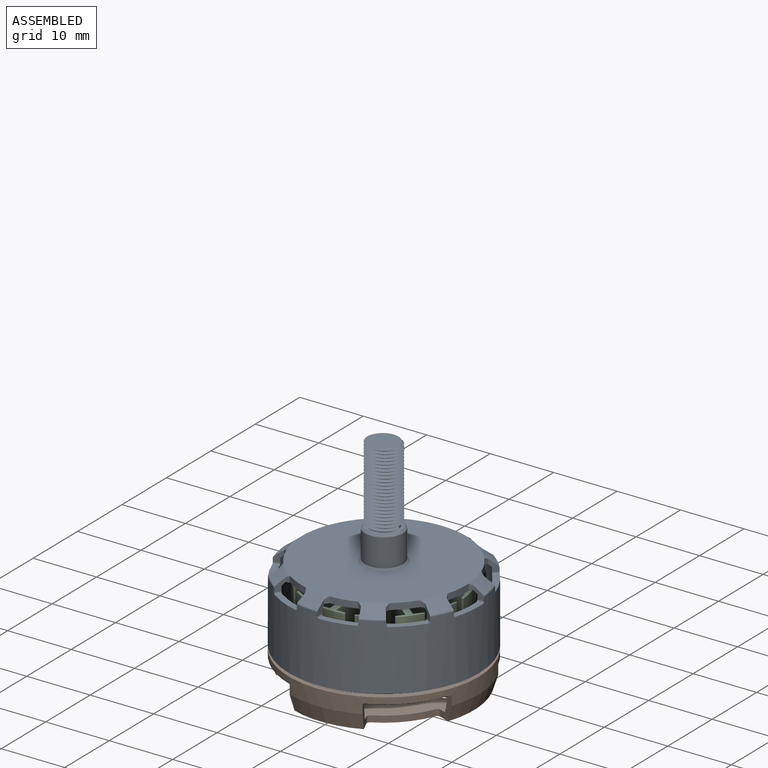
[diagram: assembled view]
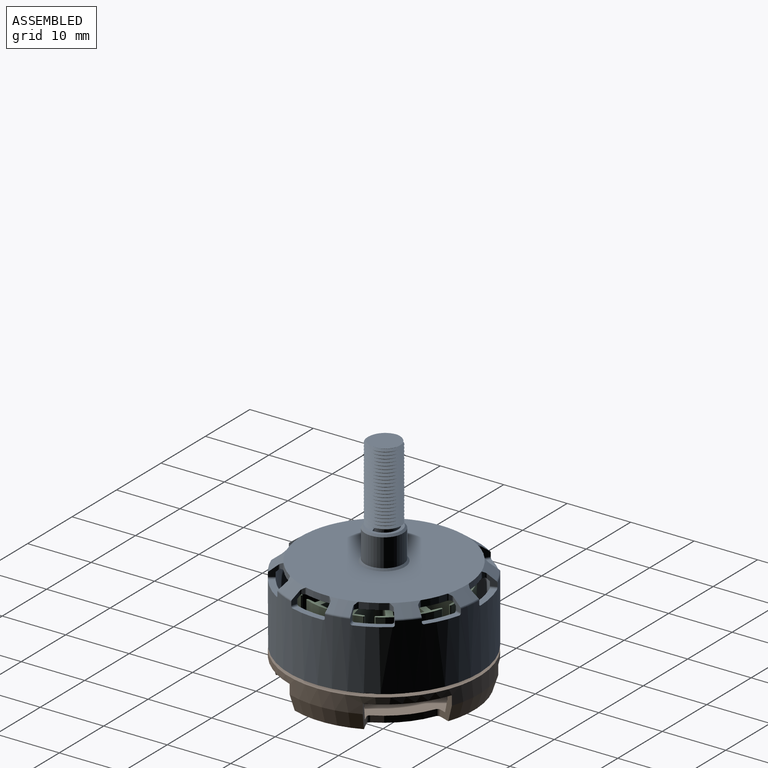
[diagram: assembled view, second angle]
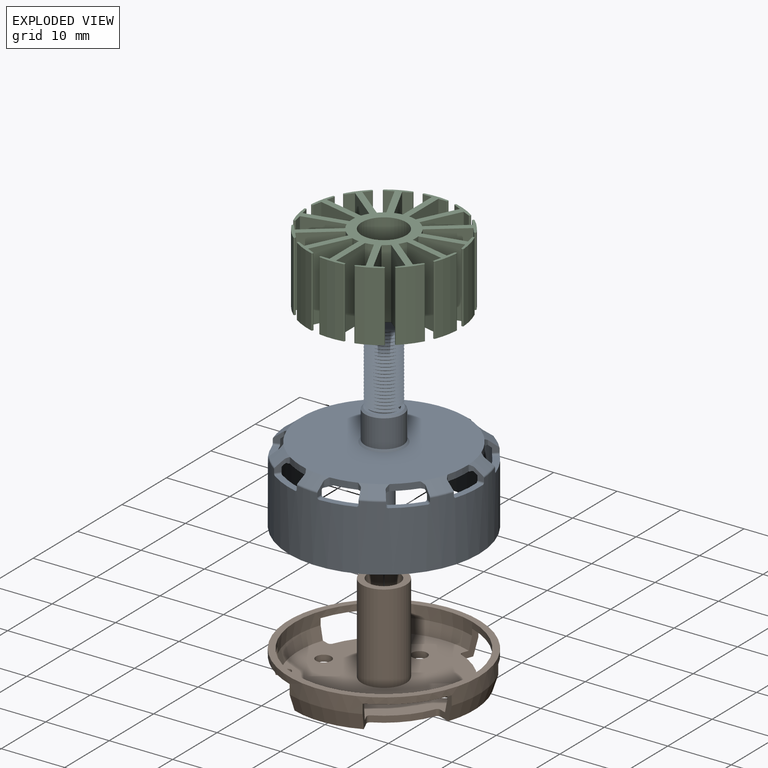
[diagram: exploded view]
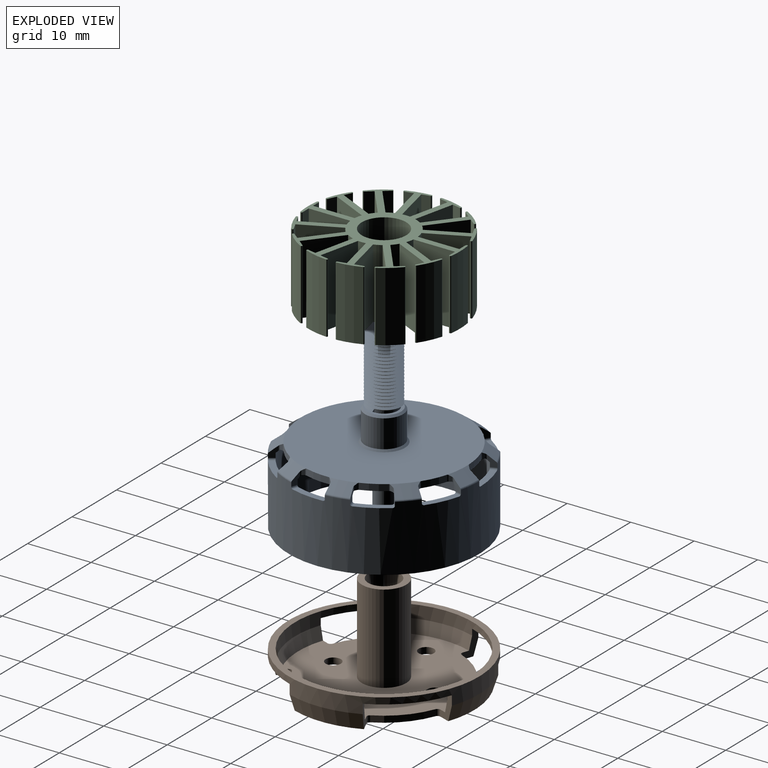
[diagram: exploded view, second angle]
ASSEMBLY  parts=3 mates=2
PART A: 166 faces, bbox 30.5x30.6x35.2 mm
  f0: bspline ~12.08x6.06mm, area 172.5mm2, adj f1,f2,f59,f60
  f1: bspline ~12.25x6.06mm, area 176.6mm2, adj f0,f2,f59,f60
  f2: cylinder r=2.2mm len=12mm, axis (0,0,-1), area -13.2mm2, adj f0,f1,f58,f59,f60
  f3: cylinder r=13mm len=3.79mm, axis (0,0,1), area 3.9mm2, adj f23,f56,f122,f123
  f4: cylinder r=13mm len=2.83mm, axis (0,0,1), area 3.9mm2, adj f23,f56,f129,f130
  f5: cylinder r=13mm len=3.83mm, axis (0,0,1), area 3.9mm2, adj f23,f56,f117,f118
  f6: cylinder r=13mm len=3.37mm, axis (0,0,1), area 3.9mm2, adj f23,f56,f113,f114
  f7: cylinder r=13mm len=3.5mm, axis (0,0,1), area 3.9mm2, adj f23,f56,f108,f109
  f8: cylinder r=13mm len=3.79mm, axis (0,0,1), area 3.9mm2, adj f23,f56,f105,f106
  f9: cylinder r=13mm len=2.83mm, axis (0,0,1), area 3.9mm2, adj f23,f56,f101,f102
  f10: cylinder r=13mm len=3.83mm, axis (0,0,1), area 3.9mm2, adj f23,f56,f96,f97
  f11: cylinder r=13mm len=3.37mm, axis (0,0,1), area 3.9mm2, adj f23,f56,f93,f94
  f12: cylinder r=13mm len=3.5mm, axis (0,0,1), area 3.9mm2, adj f23,f56,f125,f126
  f13: cone r=13mm half-angle=53.1deg, axis (0,0,-1), area 8.1mm2, adj f23,f26,f54,f73,f75,f120,f123,f124
  f14: cone r=13mm half-angle=53.1deg, axis (0,0,-1), area 8.1mm2, adj f23,f51,f53,f72,f89,f92,f93,f125
  f15: cone r=13mm half-angle=53.1deg, axis (0,0,-1), area 8.1mm2, adj f23,f48,f50,f88,f90,f91,f94,f95
  f16: cone r=13mm half-angle=53.1deg, axis (0,0,-1), area 8.1mm2, adj f23,f45,f47,f85,f87,f96,f98,f100
  f17: cone r=13mm half-angle=53.1deg, axis (0,0,-1), area 8.1mm2, adj f23,f42,f44,f83,f86,f99,f102,f104
  f18: cone r=13mm half-angle=53.1deg, axis (0,0,-1), area 8.1mm2, adj f23,f39,f41,f82,f84,f103,f106,f107
  f19: cone r=13mm half-angle=53.1deg, axis (0,0,-1), area 8.1mm2, adj f23,f36,f38,f79,f81,f108,f110,f112
  f20: cone r=13mm half-angle=53.1deg, axis (0,0,-1), area 8.1mm2, adj f23,f33,f35,f77,f80,f111,f114,f116
  f21: cone r=13mm half-angle=53.1deg, axis (0,0,-1), area 8.1mm2, adj f23,f30,f32,f71,f78,f115,f118,f128
  f22: cylinder r=15mm len=30mm, axis (0,0,-1), area 926.6mm2, adj f25,f26,f27,f28,f29,f30,f31,f32
  f23: plane 26x26mm, normal (0,0,1), area 496.7mm2, adj f3,f4,f5,f6,f7,f8,f9,f10
  f24: cone r=13mm half-angle=53.1deg, axis (0,0,-1), area 8.1mm2, adj f23,f27,f29,f74,f76,f119,f121,f122
  f25: plane 5.13x1.94mm, normal (0,0,1), area 5.1mm2, adj f22,f55,f158,f159
  f26: plane 1.74x1.39mm, normal (1,0,0), area 1.4mm2, adj f13,f22,f55,f70,f120,f159,f160
  f27: plane 1.74x1.28mm, normal (-0.92,-0.38,0), area 1.4mm2, adj f22,f24,f55,f68,f121,f155,f158
  f28: plane 4.36x4.14mm, normal (0,0,1), area 5.1mm2, adj f22,f55,f156,f157
  f29: plane 1.74x1.12mm, normal (0.81,0.59,0), area 1.4mm2, adj f22,f24,f55,f68,f119,f155,f157
  f30: plane 1.74x1.18mm, normal (-0.52,-0.85,0), area 1.4mm2, adj f21,f22,f55,f67,f128,f152,f156
  f31: plane 5.19x1.6mm, normal (0,0,1), area 5.1mm2, adj f22,f55,f153,f154
  f32: plane 1.74x1.32mm, normal (0.31,0.95,0), area 1.4mm2, adj f21,f22,f55,f67,f115,f152,f154
  f33: plane 1.74x1.38mm, normal (0.08,-1,0), area 1.4mm2, adj f20,f22,f55,f61,f116,f149,f153
  f34: plane 4.87x3.31mm, normal (0,0,1), area 5.1mm2, adj f22,f55,f150,f151
  f35: plane 1.74x1.32mm, normal (-0.31,0.95,0), area 1.4mm2, adj f20,f22,f55,f61,f111,f149,f151
  f36: plane 1.74x1.06mm, normal (0.65,-0.76,0), area 1.4mm2, adj f19,f22,f55,f62,f112,f146,f150
  f37: plane 4.98x3mm, normal (0,0,1), area 5.1mm2, adj f22,f55,f147,f148
  f38: plane 1.74x1.12mm, normal (-0.81,0.59,0), area 1.4mm2, adj f19,f22,f55,f62,f110,f146,f148
  f39: plane 1.74x1.35mm, normal (0.97,-0.24,0), area 1.4mm2, adj f18,f22,f55,f63,f107,f143,f147
  f40: plane 5.13x1.94mm, normal (0,0,1), area 5.1mm2, adj f22,f55,f144,f145
  f41: plane 1.74x1.39mm, normal (-1,0,0), area 1.4mm2, adj f18,f22,f55,f63,f103,f143,f145
  f42: plane 1.74x1.28mm, normal (0.92,0.38,0), area 1.4mm2, adj f17,f22,f55,f64,f104,f140,f144
  f43: plane 4.36x4.14mm, normal (0,0,1), area 5.1mm2, adj f22,f55,f141,f142
  f44: plane 1.74x1.12mm, normal (-0.81,-0.59,0), area 1.4mm2, adj f17,f22,f55,f64,f99,f140,f142
  f45: plane 1.74x1.18mm, normal (0.52,0.85,0), area 1.4mm2, adj f16,f22,f55,f65,f100,f137,f141
  f46: plane 5.19x1.6mm, normal (0,0,1), area 5.1mm2, adj f22,f55,f138,f139
  f47: plane 1.74x1.32mm, normal (-0.31,-0.95,0), area 1.4mm2, adj f16,f22,f55,f65,f98,f137,f139
  f48: plane 1.74x1.38mm, normal (-0.08,1,0), area 1.4mm2, adj f15,f22,f55,f66,f95,f134,f138
  f49: plane 4.87x3.31mm, normal (0,0,1), area 5.1mm2, adj f22,f55,f135,f136
  f50: plane 1.74x1.32mm, normal (0.31,-0.95,0), area 1.4mm2, adj f15,f22,f55,f66,f91,f134,f136
  f51: plane 1.74x1.06mm, normal (-0.65,0.76,0), area 1.4mm2, adj f14,f22,f55,f69,f92,f131,f135
  f52: plane 4.98x3mm, normal (0,0,1), area 5.1mm2, adj f22,f55,f132,f133
  f53: plane 1.74x1.12mm, normal (0.81,-0.59,0), area 1.4mm2, adj f14,f22,f55,f69,f127,f131,f133
  f54: plane 1.74x1.35mm, normal (-0.97,0.24,0), area 1.4mm2, adj f13,f22,f55,f70,f124,f132,f160
  f55: cylinder r=14mm len=28mm, axis (0,0,-1), area 869.9mm2, adj f25,f26,f27,f28,f29,f30,f31,f32
  f56: plane 26.8x26.74mm, normal (0,0,-1), area 538.7mm2, adj f3,f4,f5,f6,f7,f8,f9,f10
  f57: cylinder r=3mm len=6mm, axis (0,0,-1), area 82.9mm2, adj f161,f162
  f58: plane 5.4x5.4mm, normal (0,0,1), area 7.7mm2, adj f2,f162
  f59: plane 5.17x5.17mm, normal (0,0,1), area 18.3mm2, adj f0,f1,f2
  f60: plane 0.49x0.42mm, normal (0,1,0), area 0.1mm2, adj f0,f1,f2
  f61: cone r=13.4mm half-angle=50.2deg, axis (0,0,-1), area 2.6mm2, adj f33,f35,f55,f56,f77,f80,f111,f116
  f62: cone r=13.4mm half-angle=50.2deg, axis (0,0,-1), area 2.6mm2, adj f36,f38,f55,f56,f79,f81,f110,f112
  f63: cone r=13.4mm half-angle=50.2deg, axis (0,0,-1), area 2.6mm2, adj f39,f41,f55,f56,f82,f84,f103,f107
  f64: cone r=13.4mm half-angle=50.2deg, axis (0,0,-1), area 2.6mm2, adj f42,f44,f55,f56,f83,f86,f99,f104
  f65: cone r=13.4mm half-angle=50.2deg, axis (0,0,-1), area 2.6mm2, adj f45,f47,f55,f56,f85,f87,f98,f100
  f66: cone r=13.4mm half-angle=50.2deg, axis (0,0,-1), area 2.6mm2, adj f48,f50,f55,f56,f88,f90,f91,f95
  f67: cone r=13.4mm half-angle=50.2deg, axis (0,0,-1), area 2.6mm2, adj f30,f32,f55,f56,f71,f78,f115,f128
  f68: cone r=13.4mm half-angle=50.2deg, axis (0,0,-1), area 2.6mm2, adj f27,f29,f55,f56,f74,f76,f119,f121
  f69: cone r=13.4mm half-angle=50.2deg, axis (0,0,-1), area 2.6mm2, adj f51,f53,f55,f56,f72,f89,f92,f127
  f70: cone r=13.4mm half-angle=50.2deg, axis (0,0,-1), area 2.6mm2, adj f26,f54,f55,f56,f73,f75,f120,f124
  f71: plane 0.95x0.45mm, normal (0.21,-0.98,0), area 0.4mm2, adj f21,f56,f67,f128,f129
  f72: plane 0.95x0.45mm, normal (0.17,-0.98,0), area 0.4mm2, adj f14,f56,f69,f125,f127
  f73: plane 0.95x0.4mm, normal (-0.86,-0.5,0), area 0.4mm2, adj f13,f56,f70,f124,f126
  f74: plane 0.95x0.42mm, normal (-0.4,-0.92,0), area 0.4mm2, adj f24,f56,f68,f121,f122
  f75: plane 0.95x0.33mm, normal (0.72,-0.69,0), area 0.4mm2, adj f13,f56,f70,f120,f123
  f76: plane 0.95x0.45mm, normal (0.99,-0.14,0), area 0.4mm2, adj f24,f56,f68,f119,f130
  f77: plane 0.95x0.34mm, normal (0.75,-0.67,0), area 0.4mm2, adj f20,f56,f61,f116,f117
  f78: plane 0.95x0.4mm, normal (0.88,0.47,0), area 0.4mm2, adj f21,f56,f67,f115,f118
  f79: plane 0.95x0.46mm, normal (1,-0.1,0), area 0.4mm2, adj f19,f56,f62,f112,f113
  f80: plane 0.95x0.41mm, normal (0.44,0.9,0), area 0.4mm2, adj f20,f56,f61,f111,f114
  f81: plane 0.95x0.45mm, normal (-0.17,0.98,0), area 0.4mm2, adj f19,f56,f62,f108,f110
  f82: plane 0.95x0.4mm, normal (0.86,0.5,0), area 0.4mm2, adj f18,f56,f63,f107,f109
  f83: plane 0.95x0.42mm, normal (0.4,0.92,0), area 0.4mm2, adj f17,f56,f64,f104,f105
  f84: plane 0.95x0.33mm, normal (-0.72,0.69,0), area 0.4mm2, adj f18,f56,f63,f103,f106
  f85: plane 0.95x0.45mm, normal (-0.21,0.98,0), area 0.4mm2, adj f16,f56,f65,f100,f101
  f86: plane 0.95x0.45mm, normal (-0.99,0.14,0), area 0.4mm2, adj f17,f56,f64,f99,f102
  f87: plane 0.95x0.4mm, normal (-0.88,-0.47,0), area 0.4mm2, adj f16,f56,f65,f96,f98
  f88: plane 0.95x0.34mm, normal (-0.75,0.67,0), area 0.4mm2, adj f15,f56,f66,f95,f97
  f89: plane 0.95x0.46mm, normal (-1,0.1,0), area 0.4mm2, adj f14,f56,f69,f92,f93
  f90: plane 0.95x0.41mm, normal (-0.44,-0.9,0), area 0.4mm2, adj f15,f56,f66,f91,f94
  f91: cylinder r=0.3mm len=0.87mm, axis (0,0,-1), area 0.2mm2, adj f15,f50,f66,f90
  f92: cylinder r=0.3mm len=0.87mm, axis (0,0,-1), area 0.2mm2, adj f14,f51,f69,f89
  f93: cylinder r=0.3mm len=1mm, axis (0,0,1), area 0.2mm2, adj f11,f14,f56,f89
  f94: cylinder r=0.3mm len=1mm, axis (0,0,1), area 0.2mm2, adj f11,f15,f56,f90
  f95: cylinder r=0.3mm len=0.87mm, axis (0,0,-1), area 0.2mm2, adj f15,f48,f66,f88
  f96: cylinder r=0.3mm len=1mm, axis (0,0,1), area 0.2mm2, adj f10,f16,f56,f87
  f97: cylinder r=0.3mm len=1mm, axis (0,0,1), area 0.2mm2, adj f10,f15,f56,f88
  f98: cylinder r=0.3mm len=0.87mm, axis (0,0,-1), area 0.2mm2, adj f16,f47,f65,f87
  f99: cylinder r=0.3mm len=0.87mm, axis (0,0,-1), area 0.2mm2, adj f17,f44,f64,f86
  f100: cylinder r=0.3mm len=0.87mm, axis (0,0,-1), area 0.2mm2, adj f16,f45,f65,f85
  f101: cylinder r=0.3mm len=1mm, axis (0,0,1), area 0.2mm2, adj f9,f16,f56,f85
  f102: cylinder r=0.3mm len=1mm, axis (0,0,1), area 0.2mm2, adj f9,f17,f56,f86
  f103: cylinder r=0.3mm len=0.87mm, axis (0,0,-1), area 0.2mm2, adj f18,f41,f63,f84
  f104: cylinder r=0.3mm len=0.87mm, axis (0,0,-1), area 0.2mm2, adj f17,f42,f64,f83
  f105: cylinder r=0.3mm len=1mm, axis (0,0,1), area 0.2mm2, adj f8,f17,f56,f83
  f106: cylinder r=0.3mm len=1mm, axis (0,0,1), area 0.2mm2, adj f8,f18,f56,f84
  f107: cylinder r=0.3mm len=0.87mm, axis (0,0,-1), area 0.2mm2, adj f18,f39,f63,f82
  f108: cylinder r=0.3mm len=1mm, axis (0,0,1), area 0.2mm2, adj f7,f19,f56,f81
  f109: cylinder r=0.3mm len=1mm, axis (0,0,1), area 0.2mm2, adj f7,f18,f56,f82
  f110: cylinder r=0.3mm len=0.87mm, axis (0,0,-1), area 0.2mm2, adj f19,f38,f62,f81
  f111: cylinder r=0.3mm len=0.87mm, axis (0,0,-1), area 0.2mm2, adj f20,f35,f61,f80
  f112: cylinder r=0.3mm len=0.87mm, axis (0,0,-1), area 0.2mm2, adj f19,f36,f62,f79
  f113: cylinder r=0.3mm len=1mm, axis (0,0,1), area 0.2mm2, adj f6,f19,f56,f79
  f114: cylinder r=0.3mm len=1mm, axis (0,0,1), area 0.2mm2, adj f6,f20,f56,f80
  f115: cylinder r=0.3mm len=0.87mm, axis (0,0,-1), area 0.2mm2, adj f21,f32,f67,f78
  f116: cylinder r=0.3mm len=0.87mm, axis (0,0,-1), area 0.2mm2, adj f20,f33,f61,f77
  f117: cylinder r=0.3mm len=1mm, axis (0,0,1), area 0.2mm2, adj f5,f20,f56,f77
  f118: cylinder r=0.3mm len=1mm, axis (0,0,1), area 0.2mm2, adj f5,f21,f56,f78
  f119: cylinder r=0.3mm len=0.87mm, axis (0,0,-1), area 0.2mm2, adj f24,f29,f68,f76
  f120: cylinder r=0.3mm len=0.87mm, axis (0,0,-1), area 0.2mm2, adj f13,f26,f70,f75
  f121: cylinder r=0.3mm len=0.87mm, axis (0,0,-1), area 0.2mm2, adj f24,f27,f68,f74
  f122: cylinder r=0.3mm len=1mm, axis (0,0,1), area 0.2mm2, adj f3,f24,f56,f74
  f123: cylinder r=0.3mm len=1mm, axis (0,0,1), area 0.2mm2, adj f3,f13,f56,f75
  f124: cylinder r=0.3mm len=0.87mm, axis (0,0,-1), area 0.2mm2, adj f13,f54,f70,f73
  f125: cylinder r=0.3mm len=1mm, axis (0,0,1), area 0.2mm2, adj f12,f14,f56,f72
  f126: cylinder r=0.3mm len=1mm, axis (0,0,1), area 0.2mm2, adj f12,f13,f56,f73
  f127: cylinder r=0.3mm len=0.87mm, axis (0,0,-1), area 0.2mm2, adj f14,f53,f69,f72
  f128: cylinder r=0.3mm len=0.87mm, axis (0,0,-1), area 0.2mm2, adj f21,f30,f67,f71
  f129: cylinder r=0.3mm len=1mm, axis (0,0,1), area 0.2mm2, adj f4,f21,f56,f71
  f130: cylinder r=0.3mm len=1mm, axis (0,0,1), area 0.2mm2, adj f4,f24,f56,f76
  f131: torus R=14.7mm, axis (0,0,1), area 1mm2, adj f14,f22,f51,f53
  f132: cylinder r=0.3mm len=1.05mm, axis (0.24,0.97,0), area 0.5mm2, adj f22,f52,f54,f55
  f133: cylinder r=0.3mm len=0.99mm, axis (-0.59,-0.81,0), area 0.5mm2, adj f22,f52,f53,f55
  f134: torus R=14.7mm, axis (0,0,1), area 1mm2, adj f15,f22,f48,f50
  f135: cylinder r=0.3mm len=0.96mm, axis (0.76,0.65,0), area 0.5mm2, adj f22,f49,f51,f55
  f136: cylinder r=0.3mm len=1.05mm, axis (-0.95,-0.31,0), area 0.5mm2, adj f22,f49,f50,f55
  f137: torus R=14.7mm, axis (0,0,1), area 1mm2, adj f16,f22,f45,f47
  f138: cylinder r=0.3mm len=1.02mm, axis (1,0.08,0), area 0.5mm2, adj f22,f46,f48,f55
  f139: cylinder r=0.3mm len=1.05mm, axis (-0.95,0.31,0), area 0.5mm2, adj f22,f46,f47,f55
  f140: torus R=14.7mm, axis (0,0,1), area 1mm2, adj f17,f22,f42,f44
  f141: cylinder r=0.3mm len=1.01mm, axis (0.85,-0.52,0), area 0.5mm2, adj f22,f43,f45,f55
  f142: cylinder r=0.3mm len=0.99mm, axis (-0.59,0.81,0), area 0.5mm2, adj f22,f43,f44,f55
  f143: torus R=14.7mm, axis (0,0,1), area 1mm2, adj f18,f22,f39,f41
  f144: cylinder r=0.3mm len=1.04mm, axis (0.38,-0.92,0), area 0.5mm2, adj f22,f40,f42,f55
  f145: cylinder r=0.3mm len=1mm, axis (0,1,0), area 0.5mm2, adj f22,f40,f41,f55
  f146: torus R=14.7mm, axis (0,0,1), area 1mm2, adj f19,f22,f36,f38
  f147: cylinder r=0.3mm len=1.05mm, axis (-0.24,-0.97,0), area 0.5mm2, adj f22,f37,f39,f55
  f148: cylinder r=0.3mm len=0.99mm, axis (0.59,0.81,0), area 0.5mm2, adj f22,f37,f38,f55
  f149: torus R=14.7mm, axis (0,0,1), area 1mm2, adj f20,f22,f33,f35
  f150: cylinder r=0.3mm len=0.96mm, axis (-0.76,-0.65,0), area 0.5mm2, adj f22,f34,f36,f55
  f151: cylinder r=0.3mm len=1.05mm, axis (0.95,0.31,0), area 0.5mm2, adj f22,f34,f35,f55
  f152: torus R=14.7mm, axis (0,0,1), area 1mm2, adj f21,f22,f30,f32
  f153: cylinder r=0.3mm len=1.02mm, axis (-1,-0.08,0), area 0.5mm2, adj f22,f31,f33,f55
  f154: cylinder r=0.3mm len=1.05mm, axis (0.95,-0.31,0), area 0.5mm2, adj f22,f31,f32,f55
  f155: torus R=14.7mm, axis (0,0,1), area 1mm2, adj f22,f24,f27,f29
  f156: cylinder r=0.3mm len=1.01mm, axis (-0.85,0.52,0), area 0.5mm2, adj f22,f28,f30,f55
  f157: cylinder r=0.3mm len=0.99mm, axis (0.59,-0.81,0), area 0.5mm2, adj f22,f28,f29,f55
  f158: cylinder r=0.3mm len=1.04mm, axis (-0.38,0.92,0), area 0.5mm2, adj f22,f25,f27,f55
  f159: cylinder r=0.3mm len=1mm, axis (0,-1,0), area 0.5mm2, adj f22,f25,f26,f55
  f160: torus R=14.7mm, axis (0,0,1), area 1mm2, adj f13,f22,f26,f54
  f161: cone r=3mm half-angle=45deg, axis (0,0,-1), area 8.4mm2, adj f23,f57
  f162: cone r=2.7mm half-angle=45deg, axis (0,0,-1), area 7.6mm2, adj f57,f58
  f163: cylinder r=1.5mm len=16.5mm, axis (0,0,1), area 155.5mm2, adj f56,f164
  f164: plane 3x3mm, normal (0,0,-1), area 7.1mm2, adj f163
  f165: plane 30x30mm, normal (0,0,-1), area 91.1mm2, adj f22,f55
PART B: 46 faces, bbox 30x30x15 mm
  f0: cylinder r=15mm len=30mm, axis (0,0,-1), area 163mm2, adj f10,f11,f12,f13,f15,f16,f17,f19
  f1: cylinder r=0.5mm len=1mm, axis (0,0,-1), area 0.8mm2, adj f9,f28,f30,f40
  f2: cylinder r=0.5mm len=1mm, axis (0,0,-1), area 0.8mm2, adj f9,f29,f30,f40
  f3: cylinder r=0.5mm len=1mm, axis (0,0,-1), area 0.8mm2, adj f9,f24,f26,f40
  f4: cylinder r=0.5mm len=1mm, axis (0,0,-1), area 0.8mm2, adj f9,f25,f26,f40
  f5: cylinder r=0.5mm len=1mm, axis (0,0,-1), area 0.8mm2, adj f9,f20,f22,f40
  f6: cylinder r=0.5mm len=1mm, axis (0,0,-1), area 0.8mm2, adj f9,f21,f22,f40
  f7: cylinder r=0.5mm len=1mm, axis (0,0,-1), area 0.8mm2, adj f9,f16,f18,f40
  f8: cylinder r=0.5mm len=1mm, axis (0,0,-1), area 0.8mm2, adj f9,f17,f18,f40
  f9: plane 28.4x28.4mm, normal (0,0,-1), area 484.2mm2, adj f1,f2,f3,f4,f5,f6,f7,f8
  f10: cone r=15mm half-angle=17.7deg, axis (0,0,1), area 29.3mm2, adj f0,f9,f25,f28
  f11: cone r=15mm half-angle=17.7deg, axis (0,0,1), area 29.3mm2, adj f0,f9,f21,f24
  f12: cone r=15mm half-angle=17.7deg, axis (0,0,1), area 29.3mm2, adj f0,f9,f17,f20
  f13: cone r=15mm half-angle=17.7deg, axis (0,0,1), area 29.3mm2, adj f0,f9,f16,f29
  f14: cylinder r=14mm len=28mm, axis (0,0,1), area 130.7mm2, adj f15,f16,f17,f19,f20,f21,f23,f24
  f15: plane 9.03x8.36mm, normal (0,0,-1), area 11.7mm2, adj f0,f14,f16,f17
  f16: plane 4x2.37mm, normal (-0.94,0.33,0), area 5mm2, adj f0,f7,f9,f13,f14,f15,f40,f44
  f17: plane 4x2.29mm, normal (0.41,-0.91,0), area 5mm2, adj f0,f8,f9,f12,f14,f15,f40,f45
  f18: cylinder r=12mm len=6.3mm, axis (0,0,-1), area 8.7mm2, adj f7,f8,f9,f40
  f19: plane 9.03x8.36mm, normal (0,0,-1), area 11.7mm2, adj f0,f14,f20,f21
  f20: plane 4x2.37mm, normal (0.33,0.94,0), area 5mm2, adj f0,f5,f9,f12,f14,f19,f40,f45
  f21: plane 4x2.29mm, normal (-0.91,-0.41,0), area 5mm2, adj f0,f6,f9,f11,f14,f19,f40,f43
  f22: cylinder r=12mm len=6.3mm, axis (0,0,-1), area 8.7mm2, adj f5,f6,f9,f40
  f23: plane 9.03x8.36mm, normal (0,0,-1), area 11.7mm2, adj f0,f14,f24,f25
  f24: plane 4x2.37mm, normal (0.94,-0.33,0), area 5mm2, adj f0,f3,f9,f11,f14,f23,f40,f43
  f25: plane 4x2.29mm, normal (-0.41,0.91,0), area 5mm2, adj f0,f4,f9,f10,f14,f23,f40,f42
  f26: cylinder r=12mm len=6.3mm, axis (0,0,-1), area 8.7mm2, adj f3,f4,f9,f40
  f27: plane 9.03x8.36mm, normal (0,0,-1), area 11.7mm2, adj f0,f14,f28,f29
  f28: plane 4x2.37mm, normal (-0.33,-0.94,0), area 5mm2, adj f0,f1,f9,f10,f14,f27,f40,f42
  f29: plane 4x2.29mm, normal (0.91,0.41,0), area 5mm2, adj f0,f2,f9,f13,f14,f27,f40,f44
  f30: cylinder r=12mm len=6.3mm, axis (0,0,-1), area 8.7mm2, adj f1,f2,f9,f40
  f31: cylinder r=2.5mm len=14.5mm, axis (0,0,-1), area 227.8mm2, adj f33,f35
  f32: cylinder r=3.5mm len=14mm, axis (0,0,-1), area 307.9mm2, adj f33,f40
  f33: plane 7x7mm, normal (0,0,1), area 18.8mm2, adj f31,f32
  f34: cylinder r=3.5mm len=7mm, axis (0,0,-1), area 11mm2, adj f9,f35
  f35: plane 7x7mm, normal (0,0,-1), area 18.8mm2, adj f31,f34
  f36: cylinder r=1.2mm len=2.4mm, axis (0,0,-1), area 7.5mm2, adj f9,f40
  f37: cylinder r=1.2mm len=2.4mm, axis (0,0,-1), area 7.5mm2, adj f9,f40
  f38: cylinder r=1.2mm len=2.4mm, axis (0,0,-1), area 7.5mm2, adj f9,f40
  f39: cylinder r=1.2mm len=2.4mm, axis (0,0,-1), area 7.5mm2, adj f9,f40
  f40: plane 27x27mm, normal (0,0,1), area 454.6mm2, adj f1,f2,f3,f4,f5,f6,f7,f8
  f41: plane 30x30mm, normal (0,0,1), area 91.1mm2, adj f0,f14
  f42: cone r=13.5mm half-angle=14deg, axis (0,0,1), area 21.6mm2, adj f14,f25,f28,f40
  f43: cone r=13.5mm half-angle=14deg, axis (0,0,1), area 21.6mm2, adj f14,f21,f24,f40
  f44: cone r=13.5mm half-angle=14deg, axis (0,0,1), area 21.6mm2, adj f14,f16,f29,f40
  f45: cone r=13.5mm half-angle=14deg, axis (0,0,1), area 21.6mm2, adj f14,f17,f20,f40
PART C: 171 faces, bbox 24x24x11 mm
  f0: cylinder r=5mm len=11mm, axis (0,0,-1), area 13.7mm2, adj f15,f16,f155,f165
  f1: cylinder r=5mm len=11mm, axis (0,0,-1), area 13.7mm2, adj f15,f16,f144,f154
  f2: cylinder r=5mm len=11mm, axis (0,0,-1), area 13.7mm2, adj f15,f16,f133,f143
  f3: cylinder r=5mm len=11mm, axis (0,0,-1), area 13.7mm2, adj f15,f16,f122,f132
  f4: cylinder r=5mm len=11mm, axis (0,0,-1), area 13.7mm2, adj f15,f16,f111,f121
  f5: cylinder r=5mm len=11mm, axis (0,0,-1), area 13.7mm2, adj f15,f16,f100,f110
  f6: cylinder r=5mm len=11mm, axis (0,0,-1), area 13.7mm2, adj f15,f16,f89,f99
  f7: cylinder r=5mm len=11mm, axis (0,0,-1), area 13.7mm2, adj f15,f16,f78,f88
  f8: cylinder r=5mm len=11mm, axis (0,0,-1), area 13.7mm2, adj f15,f16,f67,f77
  f9: cylinder r=5mm len=11mm, axis (0,0,-1), area 13.7mm2, adj f15,f16,f56,f66
  f10: cylinder r=5mm len=11mm, axis (0,0,-1), area 13.7mm2, adj f15,f16,f45,f55
  f11: cylinder r=5mm len=11mm, axis (0,0,-1), area 13.7mm2, adj f15,f16,f34,f44
  f12: cylinder r=5mm len=11mm, axis (0,0,-1), area 13.7mm2, adj f15,f16,f23,f33
  f13: cylinder r=5mm len=11mm, axis (0,0,-1), area 13.7mm2, adj f15,f16,f22,f166
  f14: cylinder r=3.5mm len=11mm, axis (0,0,-1), area 241.9mm2, adj f15,f16
  f15: plane 24x23.95mm, normal (0,0,1), area 154.9mm2, adj f0,f1,f2,f3,f4,f5,f6,f7
  f16: plane 24x23.95mm, normal (0,0,-1), area 154.9mm2, adj f0,f1,f2,f3,f4,f5,f6,f7
  f17: plane 11x1.4mm, normal (0,-1,0), area 15.4mm2, adj f15,f16,f23,f24
  f18: plane 11x0.04mm, normal (-1,0,0), area 0.4mm2, adj f15,f16,f24,f25
  f19: cylinder r=12mm len=11mm, axis (0,0,-1), area 41.3mm2, adj f15,f16,f25,f27
  f20: plane 11x0.03mm, normal (1,0,0), area 0.4mm2, adj f15,f16,f26,f27
  f21: plane 11x1.29mm, normal (0,-1,0), area 14.2mm2, adj f15,f16,f22,f26
  f22: plane 11x6.55mm, normal (1,0,0), area 72.1mm2, adj f13,f15,f16,f21
  f23: plane 11x6.54mm, normal (-1,0,0), area 71.9mm2, adj f12,f15,f16,f17
  f24: cylinder r=0.15mm len=11mm, axis (0,0,-1), area 2.6mm2, adj f15,f16,f17,f18
  f25: cylinder r=0.15mm len=11mm, axis (0,0,-1), area 2.3mm2, adj f15,f16,f18,f19
  f26: cylinder r=0.15mm len=11mm, axis (0,0,-1), area 2.6mm2, adj f15,f16,f20,f21
  f27: cylinder r=0.15mm len=11mm, axis (0,0,-1), area 2.3mm2, adj f15,f16,f19,f20
  f28: plane 11x1.26mm, normal (0.43,-0.9,0), area 15.4mm2, adj f15,f16,f34,f35
  f29: plane 11x0.03mm, normal (-0.9,-0.43,0), area 0.4mm2, adj f15,f16,f35,f36
  f30: cylinder r=12mm len=11mm, axis (0,0,-1), area 41.3mm2, adj f15,f16,f36,f38
  f31: plane 11x0.03mm, normal (0.9,0.43,0), area 0.4mm2, adj f15,f16,f37,f38
  f32: plane 11x1.17mm, normal (0.43,-0.9,0), area 14.2mm2, adj f15,f16,f33,f37
  f33: plane 11x5.9mm, normal (0.9,0.43,0), area 72.1mm2, adj f12,f15,f16,f32
  f34: plane 11x5.89mm, normal (-0.9,-0.43,0), area 71.9mm2, adj f11,f15,f16,f28
  f35: cylinder r=0.15mm len=11mm, axis (0,0,-1), area 2.6mm2, adj f15,f16,f28,f29
  f36: cylinder r=0.15mm len=11mm, axis (0,0,-1), area 2.3mm2, adj f15,f16,f29,f30
  f37: cylinder r=0.15mm len=11mm, axis (0,0,-1), area 2.6mm2, adj f15,f16,f31,f32
  f38: cylinder r=0.15mm len=11mm, axis (0,0,-1), area 2.3mm2, adj f15,f16,f30,f31
  f39: plane 11x1.09mm, normal (0.78,-0.62,0), area 15.4mm2, adj f15,f16,f45,f46
  f40: plane 11x0.03mm, normal (-0.62,-0.78,0), area 0.4mm2, adj f15,f16,f46,f47
  f41: cylinder r=12mm len=11mm, axis (0,0,-1), area 41.3mm2, adj f15,f16,f47,f49
  f42: plane 11x0.03mm, normal (0.62,0.78,0), area 0.4mm2, adj f15,f16,f48,f49
  f43: plane 11x1.01mm, normal (0.78,-0.62,0), area 14.2mm2, adj f15,f16,f44,f48
  f44: plane 11x5.12mm, normal (0.62,0.78,0), area 72.1mm2, adj f11,f15,f16,f43
  f45: plane 11x5.11mm, normal (-0.62,-0.78,0), area 71.9mm2, adj f10,f15,f16,f39
  f46: cylinder r=0.15mm len=11mm, axis (0,0,-1), area 2.6mm2, adj f15,f16,f39,f40
  f47: cylinder r=0.15mm len=11mm, axis (0,0,-1), area 2.3mm2, adj f15,f16,f40,f41
  f48: cylinder r=0.15mm len=11mm, axis (0,0,-1), area 2.6mm2, adj f15,f16,f42,f43
  f49: cylinder r=0.15mm len=11mm, axis (0,0,-1), area 2.3mm2, adj f15,f16,f41,f42
  f50: plane 11x1.36mm, normal (0.97,-0.22,0), area 15.4mm2, adj f15,f16,f56,f57
  f51: plane 11x0.04mm, normal (-0.22,-0.97,0), area 0.4mm2, adj f15,f16,f57,f58
  f52: cylinder r=12mm len=11mm, axis (0,0,-1), area 41.3mm2, adj f15,f16,f58,f60
  f53: plane 11x0.03mm, normal (0.22,0.97,0), area 0.4mm2, adj f15,f16,f59,f60
  f54: plane 11x1.26mm, normal (0.97,-0.22,0), area 14.2mm2, adj f15,f16,f55,f59
  f55: plane 11x6.39mm, normal (0.22,0.97,0), area 72.1mm2, adj f10,f15,f16,f54
  f56: plane 11x6.37mm, normal (-0.22,-0.97,0), area 71.9mm2, adj f9,f15,f16,f50
  f57: cylinder r=0.15mm len=11mm, axis (0,0,-1), area 2.6mm2, adj f15,f16,f50,f51
  f58: cylinder r=0.15mm len=11mm, axis (0,0,-1), area 2.3mm2, adj f15,f16,f51,f52
  f59: cylinder r=0.15mm len=11mm, axis (0,0,-1), area 2.6mm2, adj f15,f16,f53,f54
  f60: cylinder r=0.15mm len=11mm, axis (0,0,-1), area 2.3mm2, adj f15,f16,f52,f53
  f61: plane 11x1.36mm, normal (0.97,0.22,0), area 15.4mm2, adj f15,f16,f67,f68
  f62: plane 11x0.04mm, normal (0.22,-0.97,0), area 0.4mm2, adj f15,f16,f68,f69
  f63: cylinder r=12mm len=11mm, axis (0,0,-1), area 41.3mm2, adj f15,f16,f69,f71
  f64: plane 11x0.03mm, normal (-0.22,0.97,0), area 0.4mm2, adj f15,f16,f70,f71
  f65: plane 11x1.26mm, normal (0.97,0.22,0), area 14.2mm2, adj f15,f16,f66,f70
  f66: plane 11x6.39mm, normal (-0.22,0.97,0), area 72.1mm2, adj f9,f15,f16,f65
  f67: plane 11x6.37mm, normal (0.22,-0.97,0), area 71.9mm2, adj f8,f15,f16,f61
  f68: cylinder r=0.15mm len=11mm, axis (0,0,-1), area 2.6mm2, adj f15,f16,f61,f62
  f69: cylinder r=0.15mm len=11mm, axis (0,0,-1), area 2.3mm2, adj f15,f16,f62,f63
  f70: cylinder r=0.15mm len=11mm, axis (0,0,-1), area 2.6mm2, adj f15,f16,f64,f65
  f71: cylinder r=0.15mm len=11mm, axis (0,0,-1), area 2.3mm2, adj f15,f16,f63,f64
  f72: plane 11x1.09mm, normal (0.78,0.62,0), area 15.4mm2, adj f15,f16,f78,f79
  f73: plane 11x0.03mm, normal (0.62,-0.78,0), area 0.4mm2, adj f15,f16,f79,f80
  f74: cylinder r=12mm len=11mm, axis (0,0,-1), area 41.3mm2, adj f15,f16,f80,f82
  f75: plane 11x0.03mm, normal (-0.62,0.78,0), area 0.4mm2, adj f15,f16,f81,f82
  f76: plane 11x1.01mm, normal (0.78,0.62,0), area 14.2mm2, adj f15,f16,f77,f81
  f77: plane 11x5.12mm, normal (-0.62,0.78,0), area 72.1mm2, adj f8,f15,f16,f76
  f78: plane 11x5.11mm, normal (0.62,-0.78,0), area 71.9mm2, adj f7,f15,f16,f72
  f79: cylinder r=0.15mm len=11mm, axis (0,0,-1), area 2.6mm2, adj f15,f16,f72,f73
  f80: cylinder r=0.15mm len=11mm, axis (0,0,-1), area 2.3mm2, adj f15,f16,f73,f74
  f81: cylinder r=0.15mm len=11mm, axis (0,0,-1), area 2.6mm2, adj f15,f16,f75,f76
  f82: cylinder r=0.15mm len=11mm, axis (0,0,-1), area 2.3mm2, adj f15,f16,f74,f75
  f83: plane 11x1.26mm, normal (0.43,0.9,0), area 15.4mm2, adj f15,f16,f89,f90
  f84: plane 11x0.03mm, normal (0.9,-0.43,0), area 0.4mm2, adj f15,f16,f90,f91
  f85: cylinder r=12mm len=11mm, axis (0,0,-1), area 41.3mm2, adj f15,f16,f91,f93
  f86: plane 11x0.03mm, normal (-0.9,0.43,0), area 0.4mm2, adj f15,f16,f92,f93
  f87: plane 11x1.17mm, normal (0.43,0.9,0), area 14.2mm2, adj f15,f16,f88,f92
  f88: plane 11x5.9mm, normal (-0.9,0.43,0), area 72.1mm2, adj f7,f15,f16,f87
  f89: plane 11x5.89mm, normal (0.9,-0.43,0), area 71.9mm2, adj f6,f15,f16,f83
  f90: cylinder r=0.15mm len=11mm, axis (0,0,-1), area 2.6mm2, adj f15,f16,f83,f84
  f91: cylinder r=0.15mm len=11mm, axis (0,0,-1), area 2.3mm2, adj f15,f16,f84,f85
  f92: cylinder r=0.15mm len=11mm, axis (0,0,-1), area 2.6mm2, adj f15,f16,f86,f87
  f93: cylinder r=0.15mm len=11mm, axis (0,0,-1), area 2.3mm2, adj f15,f16,f85,f86
  f94: plane 11x1.4mm, normal (0,1,0), area 15.4mm2, adj f15,f16,f100,f101
  f95: plane 11x0.04mm, normal (1,0,0), area 0.4mm2, adj f15,f16,f101,f102
  f96: cylinder r=12mm len=11mm, axis (0,0,-1), area 41.3mm2, adj f15,f16,f102,f104
  f97: plane 11x0.03mm, normal (-1,0,0), area 0.4mm2, adj f15,f16,f103,f104
  f98: plane 11x1.29mm, normal (0,1,0), area 14.2mm2, adj f15,f16,f99,f103
  f99: plane 11x6.55mm, normal (-1,0,0), area 72.1mm2, adj f6,f15,f16,f98
  f100: plane 11x6.54mm, normal (1,0,0), area 71.9mm2, adj f5,f15,f16,f94
  f101: cylinder r=0.15mm len=11mm, axis (0,0,-1), area 2.6mm2, adj f15,f16,f94,f95
  f102: cylinder r=0.15mm len=11mm, axis (0,0,-1), area 2.3mm2, adj f15,f16,f95,f96
  f103: cylinder r=0.15mm len=11mm, axis (0,0,-1), area 2.6mm2, adj f15,f16,f97,f98
  f104: cylinder r=0.15mm len=11mm, axis (0,0,-1), area 2.3mm2, adj f15,f16,f96,f97
  f105: plane 11x1.26mm, normal (-0.43,0.9,0), area 15.4mm2, adj f15,f16,f111,f112
  f106: plane 11x0.03mm, normal (0.9,0.43,0), area 0.4mm2, adj f15,f16,f112,f113
  f107: cylinder r=12mm len=11mm, axis (0,0,-1), area 41.3mm2, adj f15,f16,f113,f115
  f108: plane 11x0.03mm, normal (-0.9,-0.43,0), area 0.4mm2, adj f15,f16,f114,f115
  f109: plane 11x1.17mm, normal (-0.43,0.9,0), area 14.2mm2, adj f15,f16,f110,f114
  f110: plane 11x5.9mm, normal (-0.9,-0.43,0), area 72.1mm2, adj f5,f15,f16,f109
  f111: plane 11x5.89mm, normal (0.9,0.43,0), area 71.9mm2, adj f4,f15,f16,f105
  f112: cylinder r=0.15mm len=11mm, axis (0,0,-1), area 2.6mm2, adj f15,f16,f105,f106
  f113: cylinder r=0.15mm len=11mm, axis (0,0,-1), area 2.3mm2, adj f15,f16,f106,f107
  f114: cylinder r=0.15mm len=11mm, axis (0,0,-1), area 2.6mm2, adj f15,f16,f108,f109
  f115: cylinder r=0.15mm len=11mm, axis (0,0,-1), area 2.3mm2, adj f15,f16,f107,f108
  f116: plane 11x1.09mm, normal (-0.78,0.62,0), area 15.4mm2, adj f15,f16,f122,f123
  f117: plane 11x0.03mm, normal (0.62,0.78,0), area 0.4mm2, adj f15,f16,f123,f124
  f118: cylinder r=12mm len=11mm, axis (0,0,-1), area 41.3mm2, adj f15,f16,f124,f126
  f119: plane 11x0.03mm, normal (-0.62,-0.78,0), area 0.4mm2, adj f15,f16,f125,f126
  f120: plane 11x1.01mm, normal (-0.78,0.62,0), area 14.2mm2, adj f15,f16,f121,f125
  f121: plane 11x5.12mm, normal (-0.62,-0.78,0), area 72.1mm2, adj f4,f15,f16,f120
  f122: plane 11x5.11mm, normal (0.62,0.78,0), area 71.9mm2, adj f3,f15,f16,f116
  f123: cylinder r=0.15mm len=11mm, axis (0,0,-1), area 2.6mm2, adj f15,f16,f116,f117
  f124: cylinder r=0.15mm len=11mm, axis (0,0,-1), area 2.3mm2, adj f15,f16,f117,f118
  f125: cylinder r=0.15mm len=11mm, axis (0,0,-1), area 2.6mm2, adj f15,f16,f119,f120
  f126: cylinder r=0.15mm len=11mm, axis (0,0,-1), area 2.3mm2, adj f15,f16,f118,f119
  f127: plane 11x1.36mm, normal (-0.97,0.22,0), area 15.4mm2, adj f15,f16,f133,f134
  f128: plane 11x0.04mm, normal (0.22,0.97,0), area 0.4mm2, adj f15,f16,f134,f135
  f129: cylinder r=12mm len=11mm, axis (0,0,-1), area 41.3mm2, adj f15,f16,f135,f137
  f130: plane 11x0.03mm, normal (-0.22,-0.97,0), area 0.4mm2, adj f15,f16,f136,f137
  f131: plane 11x1.26mm, normal (-0.97,0.22,0), area 14.2mm2, adj f15,f16,f132,f136
  f132: plane 11x6.39mm, normal (-0.22,-0.97,0), area 72.1mm2, adj f3,f15,f16,f131
  f133: plane 11x6.37mm, normal (0.22,0.97,0), area 71.9mm2, adj f2,f15,f16,f127
  f134: cylinder r=0.15mm len=11mm, axis (0,0,-1), area 2.6mm2, adj f15,f16,f127,f128
  f135: cylinder r=0.15mm len=11mm, axis (0,0,-1), area 2.3mm2, adj f15,f16,f128,f129
  f136: cylinder r=0.15mm len=11mm, axis (0,0,-1), area 2.6mm2, adj f15,f16,f130,f131
  f137: cylinder r=0.15mm len=11mm, axis (0,0,-1), area 2.3mm2, adj f15,f16,f129,f130
  f138: plane 11x1.36mm, normal (-0.97,-0.22,0), area 15.4mm2, adj f15,f16,f144,f145
  f139: plane 11x0.04mm, normal (-0.22,0.97,0), area 0.4mm2, adj f15,f16,f145,f146
  f140: cylinder r=12mm len=11mm, axis (0,0,-1), area 41.3mm2, adj f15,f16,f146,f148
  f141: plane 11x0.03mm, normal (0.22,-0.97,0), area 0.4mm2, adj f15,f16,f147,f148
  f142: plane 11x1.26mm, normal (-0.97,-0.22,0), area 14.2mm2, adj f15,f16,f143,f147
  f143: plane 11x6.39mm, normal (0.22,-0.97,0), area 72.1mm2, adj f2,f15,f16,f142
  f144: plane 11x6.37mm, normal (-0.22,0.97,0), area 71.9mm2, adj f1,f15,f16,f138
  f145: cylinder r=0.15mm len=11mm, axis (0,0,-1), area 2.6mm2, adj f15,f16,f138,f139
  f146: cylinder r=0.15mm len=11mm, axis (0,0,-1), area 2.3mm2, adj f15,f16,f139,f140
  f147: cylinder r=0.15mm len=11mm, axis (0,0,-1), area 2.6mm2, adj f15,f16,f141,f142
  f148: cylinder r=0.15mm len=11mm, axis (0,0,-1), area 2.3mm2, adj f15,f16,f140,f141
  f149: plane 11x1.09mm, normal (-0.78,-0.62,0), area 15.4mm2, adj f15,f16,f155,f156
  f150: plane 11x0.03mm, normal (-0.62,0.78,0), area 0.4mm2, adj f15,f16,f156,f157
  f151: cylinder r=12mm len=11mm, axis (0,0,-1), area 41.3mm2, adj f15,f16,f157,f159
  f152: plane 11x0.03mm, normal (0.62,-0.78,0), area 0.4mm2, adj f15,f16,f158,f159
  f153: plane 11x1.01mm, normal (-0.78,-0.62,0), area 14.2mm2, adj f15,f16,f154,f158
  f154: plane 11x5.12mm, normal (0.62,-0.78,0), area 72.1mm2, adj f1,f15,f16,f153
  f155: plane 11x5.11mm, normal (-0.62,0.78,0), area 71.9mm2, adj f0,f15,f16,f149
  f156: cylinder r=0.15mm len=11mm, axis (0,0,-1), area 2.6mm2, adj f15,f16,f149,f150
  f157: cylinder r=0.15mm len=11mm, axis (0,0,-1), area 2.3mm2, adj f15,f16,f150,f151
  f158: cylinder r=0.15mm len=11mm, axis (0,0,-1), area 2.6mm2, adj f15,f16,f152,f153
  f159: cylinder r=0.15mm len=11mm, axis (0,0,-1), area 2.3mm2, adj f15,f16,f151,f152
  f160: plane 11x1.26mm, normal (-0.43,-0.9,0), area 15.4mm2, adj f15,f16,f166,f167
  f161: plane 11x0.03mm, normal (-0.9,0.43,0), area 0.4mm2, adj f15,f16,f167,f168
  f162: cylinder r=12mm len=11mm, axis (0,0,-1), area 41.3mm2, adj f15,f16,f168,f170
  f163: plane 11x0.03mm, normal (0.9,-0.43,0), area 0.4mm2, adj f15,f16,f169,f170
  f164: plane 11x1.17mm, normal (-0.43,-0.9,0), area 14.2mm2, adj f15,f16,f165,f169
  f165: plane 11x5.9mm, normal (0.9,-0.43,0), area 72.1mm2, adj f0,f15,f16,f164
  f166: plane 11x5.89mm, normal (-0.9,0.43,0), area 71.9mm2, adj f13,f15,f16,f160
  f167: cylinder r=0.15mm len=11mm, axis (0,0,-1), area 2.6mm2, adj f15,f16,f160,f161
  f168: cylinder r=0.15mm len=11mm, axis (0,0,-1), area 2.3mm2, adj f15,f16,f161,f162
  f169: cylinder r=0.15mm len=11mm, axis (0,0,-1), area 2.6mm2, adj f15,f16,f163,f164
  f170: cylinder r=0.15mm len=11mm, axis (0,0,-1), area 2.3mm2, adj f15,f16,f162,f163
PLACE A t=(0.05,3.2,4.36)mm
PLACE B t=(0.05,3.2,-3.14)mm
PLACE C t=(0.05,3.2,0.86)mm
MATE revolute A.f2 <-> B.f0  axis (0,0,-1) through (0.05,3.2,-3.14)mm
MATE fastened C.f0 <-> B.f0  axis (0,0,-1) through (0.05,3.2,11.86)mm
